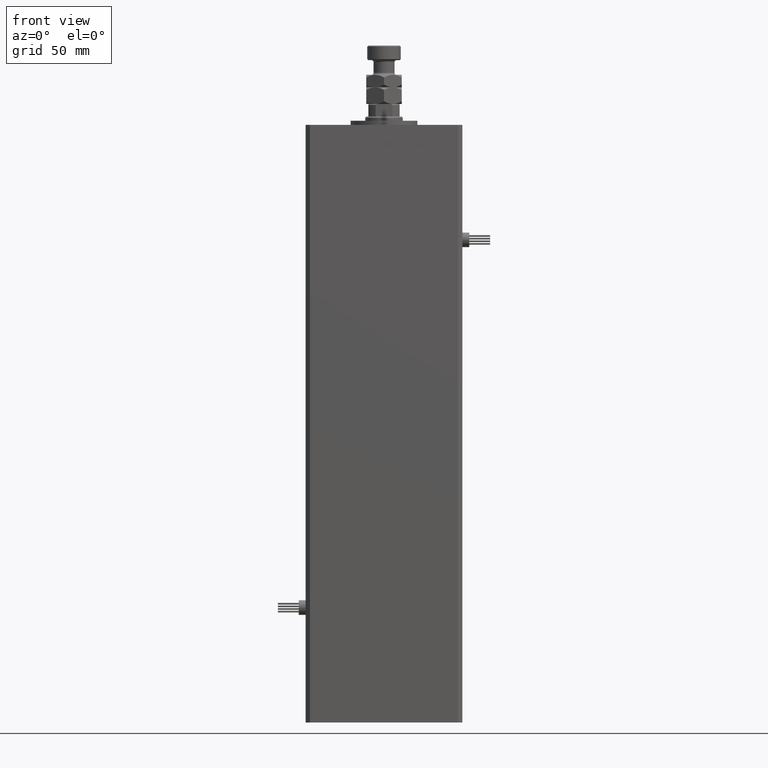
[diagram: clean part render]
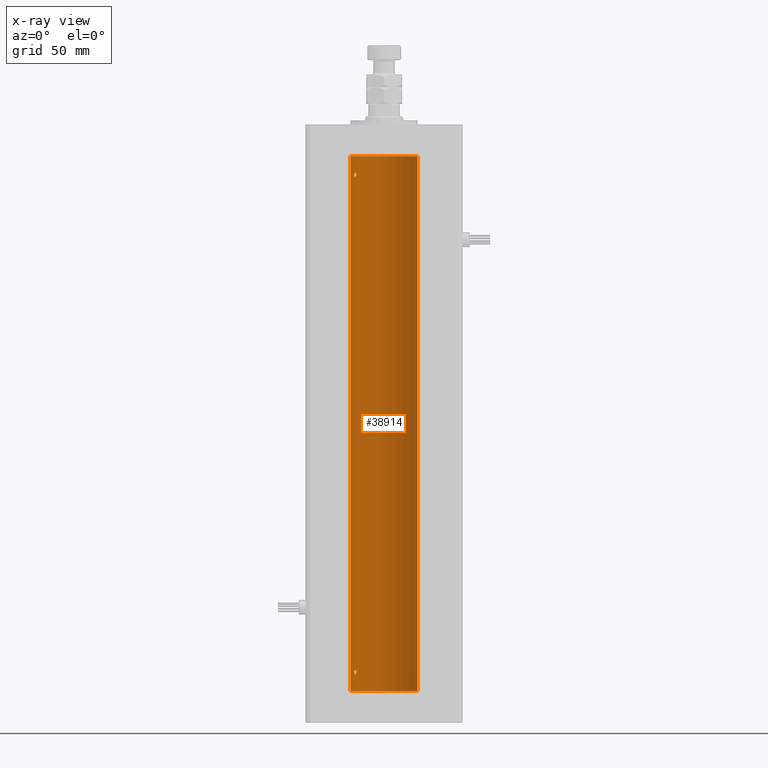
[diagram: x-ray — body ghosted, one internal face saturated and labeled with its STEP entity id]
A machine part, front view, then the same camera in x-ray: the body is ghosted and one INTERNAL B-rep face — a face not visible from any outside direction — is saturated and labeled: STEP entity #38914.
In plain terms, the highlighted cylindrical surface (edge-blend (fillet) strip) has radius 16 mm, axis along (-0, -0, -1).
Its self-contained STEP definition (entity closure, byte-faithful):
#76 = CARTESIAN_POINT ( 'NONE',  ( -13.24976519864029179, 8.969293778684576779, 9.281535226335156707 ) ) ;
#213 = CYLINDRICAL_SURFACE ( 'NONE', #35371, 16.00000000000000000 ) ;
#503 = DIRECTION ( 'NONE',  ( -0.000000000000000000, 0.000000000000000000, 1.000000000000000000 ) ) ;
#1325 = ORIENTED_EDGE ( 'NONE', *, *, #16574, .F. ) ;
#1397 = CARTESIAN_POINT ( 'NONE',  ( -13.77582987033440709, 8.139210687602719929, 246.0021105458419015 ) ) ;
#1477 = CARTESIAN_POINT ( 'NONE',  ( 16.00000000000000000, 1.959434878635765131E-15, 256.0000000000000000 ) ) ;
#2093 = CARTESIAN_POINT ( 'NONE',  ( -13.55800260393081835, 8.498809056167509368, 247.9036434462101681 ) ) ;
#2378 = CARTESIAN_POINT ( 'NONE',  ( -14.27521483392928836, 7.227035590538638310, 247.6478598706881940 ) ) ;
#2748 = EDGE_CURVE ( 'NONE', #21943, #4490, #44199, .T. ) ;
#4490 = VERTEX_POINT ( 'NONE', #55621 ) ;
#4532 = FACE_BOUND ( 'NONE', #21783, .T. ) ;
#5337 = ORIENTED_EDGE ( 'NONE', *, *, #17382, .F. ) ;
#5656 = CARTESIAN_POINT ( 'NONE',  ( 0.000000000000000000, 0.000000000000000000, 256.0000000000000000 ) ) ;
#5975 = CARTESIAN_POINT ( 'NONE',  ( -13.25390108270225120, 8.962947079338391632, 246.7214357623584533 ) ) ;
#7173 = CARTESIAN_POINT ( 'NONE',  ( -13.49759407097374897, 8.592283911330223845, 8.184099152127670251 ) ) ;
#7445 = CARTESIAN_POINT ( 'NONE',  ( -14.38749456993815912, 6.999999999999997335, 9.000000000000000000 ) ) ;
#7536 = CARTESIAN_POINT ( 'NONE',  ( -13.32457971225032622, 8.857769707964648020, 247.5319996627465002 ) ) ;
#7741 = ORIENTED_EDGE ( 'NONE', *, *, #22320, .F. ) ;
#7747 = B_SPLINE_CURVE_WITH_KNOTS ( 'NONE', 3,
 ( #48637, #44597, #76, #47768, #26242, #31390, #22194, #52383, #13005, #43467, #12732, #34845, #17604, #8411, #35116, #22477 ),
 .UNSPECIFIED., .F., .F.,
 ( 4, 2, 2, 2, 2, 2, 2, 4 ),
 ( 0.003377672193071777282, 0.003799209865779874882, 0.004220747538487972482, 0.005063822883904168549, 0.005485360556612268318, 0.005906898229320367219, 0.006328435902028466120, 0.006749973574736565889 ),
 .UNSPECIFIED. ) ;
#8014 = CARTESIAN_POINT ( 'NONE',  ( -13.26838749541400198, 8.941532915076040311, 8.656217793921369363 ) ) ;
#8411 = CARTESIAN_POINT ( 'NONE',  ( -14.37227256866306213, 7.031482256185707769, 9.284457240976479397 ) ) ;
#8495 = AXIS2_PLACEMENT_3D ( 'NONE', #13081, #31179, #39500 ) ;
#8512 = ORIENTED_EDGE ( 'NONE', *, *, #2748, .F. ) ;
#8841 = FACE_OUTER_BOUND ( 'NONE', #11845, .T. ) ;
#9743 = CARTESIAN_POINT ( 'NONE',  ( -13.23400746336172240, 8.992294519018086518, 246.8578145590230406 ) ) ;
#9836 = EDGE_CURVE ( 'NONE', #55192, #32132, #10354, .T. ) ;
#10028 = CARTESIAN_POINT ( 'NONE',  ( -13.26838749541400908, 8.941532915076043864, 246.6562177939213711 ) ) ;
#10262 = DIRECTION ( 'NONE',  ( 1.000000000000000000, 0.000000000000000000, 0.000000000000000000 ) ) ;
#10354 = CIRCLE ( 'NONE', #8495, 16.00000000000000000 ) ;
#11009 = CARTESIAN_POINT ( 'NONE',  ( -14.38749456993815912, 6.999999999999998224, 247.0000000000000000 ) ) ;
#11771 = CARTESIAN_POINT ( 'NONE',  ( -14.31660136508399184, 7.144151923086058176, 8.464621795444474017 ) ) ;
#11845 = EDGE_LOOP ( 'NONE', ( #1325, #26247, #54122, #27542 ) ) ;
#12732 = CARTESIAN_POINT ( 'NONE',  ( -14.17576283486774535, 7.420212263225985261, 9.825253034304354927 ) ) ;
#13005 = CARTESIAN_POINT ( 'NONE',  ( -13.98878315975729159, 7.767347947480346626, 9.980546143261280534 ) ) ;
#13081 = CARTESIAN_POINT ( 'NONE',  ( 0.000000000000000000, 0.000000000000000000, 0.000000000000000000 ) ) ;
#13295 = AXIS2_PLACEMENT_3D ( 'NONE', #5656, #503, #10262 ) ;
#14042 = CARTESIAN_POINT ( 'NONE',  ( -14.38749456993816267, 6.999999999999999112, 246.8571474096355018 ) ) ;
#15312 = VERTEX_POINT ( 'NONE', #54125 ) ;
#15599 = CARTESIAN_POINT ( 'NONE',  ( -14.37227256866306213, 7.031482256185711321, 247.2844572409765362 ) ) ;
#15820 = EDGE_LOOP ( 'NONE', ( #49072, #5337 ) ) ;
#16361 = CARTESIAN_POINT ( 'NONE',  ( -13.25390108270225298, 8.962947079338388079, 8.721435762358455079 ) ) ;
#16574 = EDGE_CURVE ( 'NONE', #52907, #55192, #40824, .T. ) ;
#17202 = CARTESIAN_POINT ( 'NONE',  ( -13.32426099938365027, 8.858246960865852060, 8.468874877532968526 ) ) ;
#17382 = EDGE_CURVE ( 'NONE', #15312, #47820, #26652, .T. ) ;
#17604 = CARTESIAN_POINT ( 'NONE',  ( -14.31650799088418324, 7.144337649771912879, 9.535522627373689275 ) ) ;
#18646 = CARTESIAN_POINT ( 'NONE',  ( -13.91838063522421010, 7.892966471903945624, 245.9981483133087181 ) ) ;
#18891 = DIRECTION ( 'NONE',  ( -1.000000000000000000, 0.000000000000000000, 0.000000000000000000 ) ) ;
#19499 = CARTESIAN_POINT ( 'NONE',  ( -14.37250282441143945, 7.031013007322939323, 246.7168569960372793 ) ) ;
#19918 = CARTESIAN_POINT ( 'NONE',  ( -14.31650799088418147, 7.144337649771908438, 247.5355226273736662 ) ) ;
#19999 = CARTESIAN_POINT ( 'NONE',  ( 16.00000000000000000, 1.959434878635765131E-15, 0.000000000000000000 ) ) ;
#20668 = CARTESIAN_POINT ( 'NONE',  ( -14.38749456993815556, 6.999999999999997335, 8.857147409635411250 ) ) ;
#21783 = EDGE_LOOP ( 'NONE', ( #8512, #7741 ) ) ;
#21868 = EDGE_CURVE ( 'NONE', #32904, #32132, #48197, .T. ) ;
#21943 = VERTEX_POINT ( 'NONE', #45296 ) ;
#22050 = FACE_BOUND ( 'NONE', #15820, .T. ) ;
#22052 = CARTESIAN_POINT ( 'NONE',  ( -16.00000000000000000, 0.000000000000000000, 256.0000000000000000 ) ) ;
#22194 = CARTESIAN_POINT ( 'NONE',  ( -13.70792461986390620, 8.256614593260307444, 9.996621535642271184 ) ) ;
#22320 = EDGE_CURVE ( 'NONE', #4490, #21943, #7747, .T. ) ;
#22477 = CARTESIAN_POINT ( 'NONE',  ( -14.38749456993815912, 6.999999999999997335, 9.000000000000000000 ) ) ;
#22598 = CARTESIAN_POINT ( 'NONE',  ( -16.00000000000000000, 0.000000000000000000, 256.0000000000000000 ) ) ;
#23225 = CARTESIAN_POINT ( 'NONE',  ( -13.37674940693422876, 8.779234808442867077, 246.3602441571267718 ) ) ;
#24496 = CARTESIAN_POINT ( 'NONE',  ( -13.91892506969882071, 7.891973478508848672, 248.0015521226323472 ) ) ;
#25799 = CARTESIAN_POINT ( 'NONE',  ( -14.38749456993815912, 6.999999999999998224, 247.0000000000000000 ) ) ;
#26242 = CARTESIAN_POINT ( 'NONE',  ( -13.37741691572085934, 8.778212469423014142, 9.640882860227099727 ) ) ;
#26247 = ORIENTED_EDGE ( 'NONE', *, *, #40473, .T. ) ;
#26377 = DIRECTION ( 'NONE',  ( -0.000000000000000000, -0.000000000000000000, -1.000000000000000000 ) ) ;
#26652 = B_SPLINE_CURVE_WITH_KNOTS ( 'NONE', 3,
 ( #35727, #37425, #54973, #7536, #33386, #2093, #32544, #24496, #51212, #50089, #42295, #2378, #19918, #15599, #55246, #11009 ),
 .UNSPECIFIED., .F., .F.,
 ( 4, 2, 2, 2, 2, 2, 2, 4 ),
 ( 0.003377672193071779884, 0.003799209865779855366, 0.004220747538487930849, 0.005063822883904134722, 0.005485360556612237093, 0.005906898229320339463, 0.006328435902028442701, 0.006749973574736545072 ),
 .UNSPECIFIED. ) ;
#27282 = CARTESIAN_POINT ( 'NONE',  ( -13.98699950016872151, 7.770591669637114229, 246.0184768166483877 ) ) ;
#27542 = ORIENTED_EDGE ( 'NONE', *, *, #9836, .F. ) ;
#28078 = CARTESIAN_POINT ( 'NONE',  ( 0.000000000000000000, 0.000000000000000000, 256.0000000000000000 ) ) ;
#28124 = CARTESIAN_POINT ( 'NONE',  ( -13.22875655532295625, 8.999999999999994671, 246.9295656223615936 ) ) ;
#28485 = DIRECTION ( 'NONE',  ( -0.000000000000000000, -0.000000000000000000, -1.000000000000000000 ) ) ;
#31179 = DIRECTION ( 'NONE',  ( -0.000000000000000000, 0.000000000000000000, 1.000000000000000000 ) ) ;
#31390 = CARTESIAN_POINT ( 'NONE',  ( -13.55800260393082546, 8.498809056167521803, 9.903643446210175227 ) ) ;
#31853 = CARTESIAN_POINT ( 'NONE',  ( -14.27547848986622370, 7.226527013162184154, 246.3525557301815070 ) ) ;
#32132 = VERTEX_POINT ( 'NONE', #42095 ) ;
#32135 = CARTESIAN_POINT ( 'NONE',  ( -13.56386909142669772, 8.487613976483636691, 246.1182242979961359 ) ) ;
#32364 = DIRECTION ( 'NONE',  ( -0.000000000000000000, -0.000000000000000000, -1.000000000000000000 ) ) ;
#32411 = CARTESIAN_POINT ( 'NONE',  ( -14.11621438951177687, 7.533308783217008475, 246.1065710718394826 ) ) ;
#32544 = CARTESIAN_POINT ( 'NONE',  ( -13.70792461986390798, 8.256614593260307444, 247.9966215356422765 ) ) ;
#32904 = VERTEX_POINT ( 'NONE', #22598 ) ;
#33386 = CARTESIAN_POINT ( 'NONE',  ( -13.37741691572086111, 8.778212469423007036, 247.6408828602271512 ) ) ;
#33881 = CARTESIAN_POINT ( 'NONE',  ( -13.22875655532295092, 8.999999999999994671, 8.929565622361636201 ) ) ;
#34719 = CARTESIAN_POINT ( 'NONE',  ( -13.23400746336172951, 8.992294519018086518, 8.857814559023015732 ) ) ;
#34845 = CARTESIAN_POINT ( 'NONE',  ( -14.27521483392929014, 7.227035590538633869, 9.647859870688195727 ) ) ;
#35116 = CARTESIAN_POINT ( 'NONE',  ( -14.38749456993816445, 6.999999999999997335, 9.142625441524202756 ) ) ;
#35371 = AXIS2_PLACEMENT_3D ( 'NONE', #28078, #32364, #18891 ) ;
#35727 = CARTESIAN_POINT ( 'NONE',  ( -13.22875655532295802, 8.999999999999996447, 247.0000000000000000 ) ) ;
#35869 = CARTESIAN_POINT ( 'NONE',  ( -13.22875655532295802, 8.999999999999996447, 247.0000000000000000 ) ) ;
#36305 = VECTOR ( 'NONE', #28485, 1000.000000000000000 ) ;
#37425 = CARTESIAN_POINT ( 'NONE',  ( -13.22875655532296157, 8.999999999999994671, 247.1406447609177519 ) ) ;
#37892 = CARTESIAN_POINT ( 'NONE',  ( -13.77582987033441064, 8.139210687602712824, 8.002110545841816247 ) ) ;
#38181 = CARTESIAN_POINT ( 'NONE',  ( -13.91838063522420832, 7.892966471903941184, 7.998148313308679036 ) ) ;
#38461 = CARTESIAN_POINT ( 'NONE',  ( -13.70481462797718031, 8.258098555717506173, 8.025997477291133109 ) ) ;
#38914 = ADVANCED_FACE ( 'NONE', ( #8841, #4532, #22050 ), #213, .F. ) ;
#39014 = CARTESIAN_POINT ( 'NONE',  ( -14.37250282441143767, 7.031013007322936659, 8.716856996037261496 ) ) ;
#39219 = VECTOR ( 'NONE', #26377, 1000.000000000000000 ) ;
#39500 = DIRECTION ( 'NONE',  ( 1.000000000000000000, 0.000000000000000000, 0.000000000000000000 ) ) ;
#40473 = EDGE_CURVE ( 'NONE', #52907, #32904, #50919, .T. ) ;
#40824 = LINE ( 'NONE', #1477, #36305 ) ;
#42095 = CARTESIAN_POINT ( 'NONE',  ( -16.00000000000000000, 0.000000000000000000, 0.000000000000000000 ) ) ;
#42295 = CARTESIAN_POINT ( 'NONE',  ( -14.17576283486774891, 7.420212263225987925, 247.8252530343044100 ) ) ;
#43467 = CARTESIAN_POINT ( 'NONE',  ( -14.11618354197461400, 7.533333301880478672, 9.893207651933416003 ) ) ;
#44199 = B_SPLINE_CURVE_WITH_KNOTS ( 'NONE', 3,
 ( #7445, #20668, #39014, #11771, #47653, #51405, #46521, #56556, #38181, #37892, #38461, #55721, #7173, #47363, #17202, #8014, #16361, #34719, #33881, #52262 ),
 .UNSPECIFIED., .F., .F.,
 ( 4, 2, 2, 2, 2, 2, 2, 2, 2, 4 ),
 ( 0.000000000000000000, 0.0004222090241339719976, 0.0008444180482679439952, 0.001266627072401915830, 0.001688836096535887990, 0.002111045120669860151, 0.002533254144803831660, 0.002955463168937803604, 0.003166567681004790660, 0.003377672193071777282 ),
 .UNSPECIFIED. ) ;
#44597 = CARTESIAN_POINT ( 'NONE',  ( -13.22875655532295447, 8.999999999999996447, 9.140644760917734146 ) ) ;
#45061 = CARTESIAN_POINT ( 'NONE',  ( -14.31660136508398828, 7.144151923086063505, 246.4646217954444580 ) ) ;
#45296 = CARTESIAN_POINT ( 'NONE',  ( -14.38749456993815912, 6.999999999999997335, 9.000000000000000000 ) ) ;
#46521 = CARTESIAN_POINT ( 'NONE',  ( -14.11621438951177332, 7.533308783217010252, 8.106571071839512754 ) ) ;
#47229 = EDGE_CURVE ( 'NONE', #47820, #15312, #55392, .T. ) ;
#47363 = CARTESIAN_POINT ( 'NONE',  ( -13.37674940693422521, 8.779234808442870630, 8.360244157126784259 ) ) ;
#47653 = CARTESIAN_POINT ( 'NONE',  ( -14.27547848986622014, 7.226527013162185931, 8.352555730181528304 ) ) ;
#47768 = CARTESIAN_POINT ( 'NONE',  ( -13.32457971225032445, 8.857769707964649797, 9.531999662746555302 ) ) ;
#47820 = VERTEX_POINT ( 'NONE', #25799 ) ;
#48197 = LINE ( 'NONE', #22052, #39219 ) ;
#48603 = CARTESIAN_POINT ( 'NONE',  ( 16.00000000000000000, 1.959434878635765131E-15, 256.0000000000000000 ) ) ;
#48637 = CARTESIAN_POINT ( 'NONE',  ( -13.22875655532295447, 8.999999999999996447, 9.000000000000000000 ) ) ;
#49072 = ORIENTED_EDGE ( 'NONE', *, *, #47229, .F. ) ;
#49097 = CARTESIAN_POINT ( 'NONE',  ( -13.70481462797717676, 8.258098555717509726, 246.0259974772911562 ) ) ;
#49392 = CARTESIAN_POINT ( 'NONE',  ( -14.38749456993815912, 6.999999999999998224, 247.0000000000000000 ) ) ;
#49670 = CARTESIAN_POINT ( 'NONE',  ( -14.17528142432533755, 7.421143801852455368, 246.1739430735387089 ) ) ;
#50089 = CARTESIAN_POINT ( 'NONE',  ( -14.11618354197461400, 7.533333301880474231, 247.8932076519334373 ) ) ;
#50919 = CIRCLE ( 'NONE', #13295, 16.00000000000000000 ) ;
#51212 = CARTESIAN_POINT ( 'NONE',  ( -13.98878315975728803, 7.767347947480344850, 247.9805461432612503 ) ) ;
#51405 = CARTESIAN_POINT ( 'NONE',  ( -14.17528142432533755, 7.421143801852455368, 8.173943073538659121 ) ) ;
#52262 = CARTESIAN_POINT ( 'NONE',  ( -13.22875655532295447, 8.999999999999996447, 9.000000000000000000 ) ) ;
#52383 = CARTESIAN_POINT ( 'NONE',  ( -13.91892506969882959, 7.891973478508852224, 10.00155212263243953 ) ) ;
#52907 = VERTEX_POINT ( 'NONE', #48603 ) ;
#53416 = CARTESIAN_POINT ( 'NONE',  ( -13.32426099938365383, 8.858246960865844954, 246.4688748775329827 ) ) ;
#53993 = CARTESIAN_POINT ( 'NONE',  ( -13.49759407097375075, 8.592283911330223845, 246.1840991521276862 ) ) ;
#54122 = ORIENTED_EDGE ( 'NONE', *, *, #21868, .T. ) ;
#54125 = CARTESIAN_POINT ( 'NONE',  ( -13.22875655532295802, 8.999999999999996447, 247.0000000000000000 ) ) ;
#54973 = CARTESIAN_POINT ( 'NONE',  ( -13.24976519864029179, 8.969293778684573226, 247.2815352263351372 ) ) ;
#55192 = VERTEX_POINT ( 'NONE', #19999 ) ;
#55246 = CARTESIAN_POINT ( 'NONE',  ( -14.38749456993815734, 6.999999999999997335, 247.1426254415242454 ) ) ;
#55392 = B_SPLINE_CURVE_WITH_KNOTS ( 'NONE', 3,
 ( #49392, #14042, #19499, #45061, #31853, #49670, #32411, #27282, #18646, #1397, #49097, #32135, #53993, #23225, #53416, #10028, #5975, #9743, #28124, #35869 ),
 .UNSPECIFIED., .F., .F.,
 ( 4, 2, 2, 2, 2, 2, 2, 2, 2, 4 ),
 ( 0.000000000000000000, 0.0004222090241339633240, 0.0008444180482679266480, 0.001266627072401889809, 0.001688836096535853296, 0.002111045120669816783, 0.002533254144803779619, 0.002955463168937742888, 0.003166567681004761603, 0.003377672193071779884 ),
 .UNSPECIFIED. ) ;
#55621 = CARTESIAN_POINT ( 'NONE',  ( -13.22875655532295447, 8.999999999999996447, 9.000000000000000000 ) ) ;
#55721 = CARTESIAN_POINT ( 'NONE',  ( -13.56386909142669950, 8.487613976483636691, 8.118224297996075478 ) ) ;
#56556 = CARTESIAN_POINT ( 'NONE',  ( -13.98699950016872151, 7.770591669637119558, 8.018476816648481886 ) ) ;